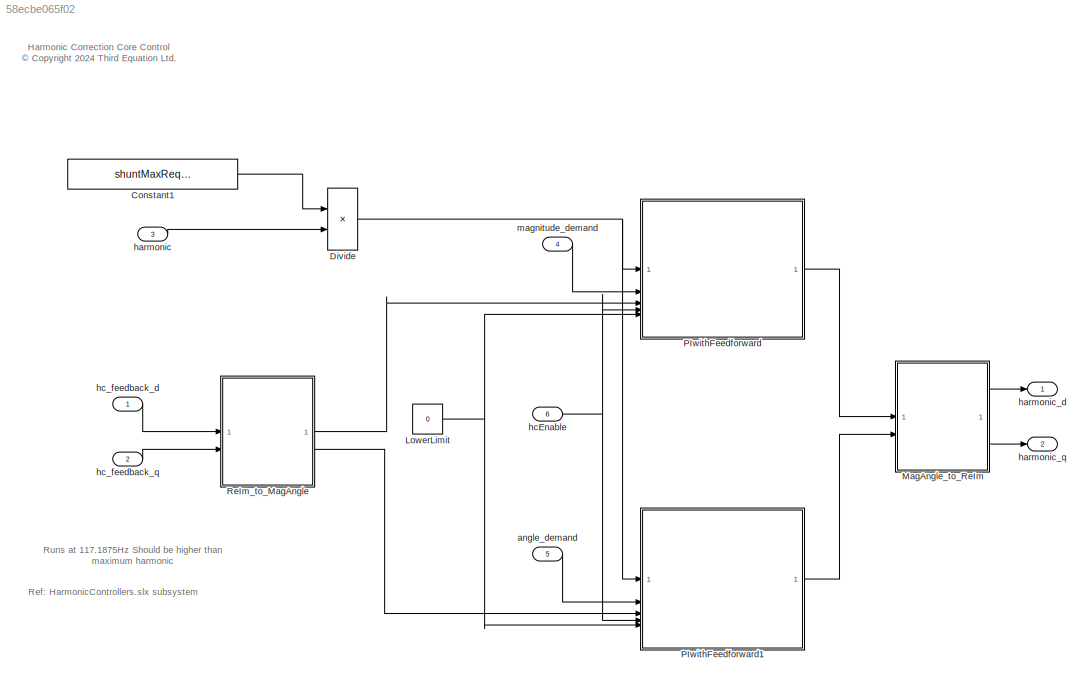
MODEL slx_58ecbe065f02
KIND model
BLOCK [Constant] Constant1
  OutDataTypeStr = single
  Value = shuntMaxRequestedCurrentrms
BLOCK [Product] Divide
  Inputs = */
BLOCK [Constant] LowerLimit
  OutDataTypeStr = single
  Value = 0
BLOCK [SubSystem] MagAngle_to_ReIm
  ReferencedSubsystem = MagAngle2ReIm
BLOCK [SubSystem] PIwithFeedforward
  Gain = 1
  I = 4
  P = 0
  ReferencedSubsystem = PIwithFeedforward
BLOCK [SubSystem] PIwithFeedforward1
  Gain = 1
  I = 4
  P = 0
  ReferencedSubsystem = PIwithFeedforward
BLOCK [SubSystem] ReIm_to_MagAngle
  ReferencedSubsystem = ReIm2MagAngle
BLOCK [Inport] angle_demand
  OutDataTypeStr = single
  Port = 5
  PortDimensions = 3
BLOCK [Inport] harmonic
  OutDataTypeStr = single
  Port = 3
  PortDimensions = 1
BLOCK [Outport] harmonic_d
  OutDataTypeStr = single
  PortDimensions = 3
BLOCK [Outport] harmonic_q
  OutDataTypeStr = single
  Port = 2
  PortDimensions = 3
BLOCK [Inport] hcEnable
  OutDataTypeStr = boolean
  Port = 6
  PortDimensions = 1
BLOCK [Inport] hc_feedback_d
  OutDataTypeStr = single
  PortDimensions = 3
BLOCK [Inport] hc_feedback_q
  OutDataTypeStr = single
  Port = 2
  PortDimensions = 3
BLOCK [Inport] magnitude_demand
  OutDataTypeStr = single
  Port = 4
  PortDimensions = 3
ANNOTATION (root): Harmonic Correction Core Control <copyright redacted>
ANNOTATION (root): Runs at 117.1875Hz Should be higher than maximum harmonic
ANNOTATION (root): Ref: HarmonicControllers.slx subsystem
LINE Constant1:1 -> Divide:1
NET Divide:1 -> PIwithFeedforward1:1, PIwithFeedforward:1
NET LowerLimit:1 -> PIwithFeedforward1:5, PIwithFeedforward:5
LINE MagAngle_to_ReIm:1 -> harmonic_d:1
LINE MagAngle_to_ReIm:2 -> harmonic_q:1
LINE PIwithFeedforward1:1 -> MagAngle_to_ReIm:2
LINE PIwithFeedforward:1 -> MagAngle_to_ReIm:1
LINE ReIm_to_MagAngle:1 -> PIwithFeedforward:3
LINE ReIm_to_MagAngle:2 -> PIwithFeedforward1:3
LINE angle_demand:1 -> PIwithFeedforward1:2
LINE harmonic:1 -> Divide:2
NET hcEnable:1 -> PIwithFeedforward1:4, PIwithFeedforward:4
LINE hc_feedback_d:1 -> ReIm_to_MagAngle:1
LINE hc_feedback_q:1 -> ReIm_to_MagAngle:2
LINE magnitude_demand:1 -> PIwithFeedforward:2
note: NET lines group one-source signal fan-out (src -> all destinations, sorted); 1:1 wires keep LINE
